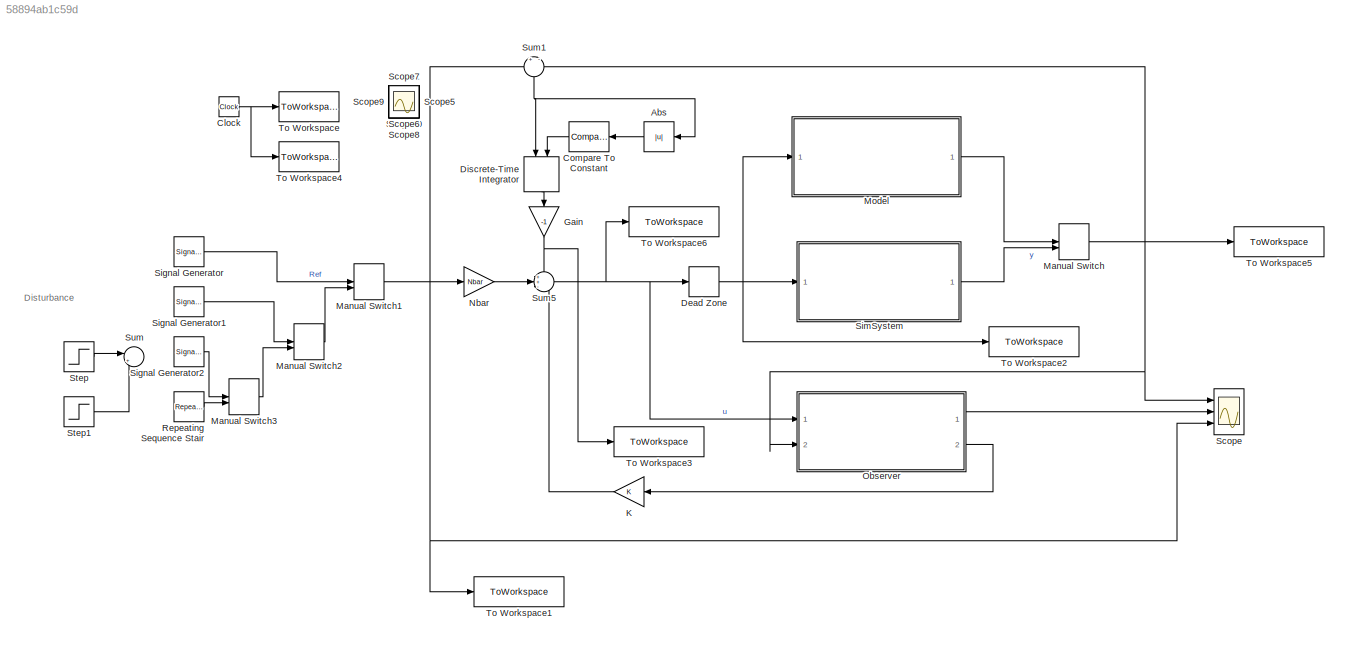
MODEL slx_58894ab1c59d
KIND model
CONFIG AbsTol = auto
CONFIG EnableMultiTasking = on
CONFIG FixedStep = auto
CONFIG MaxStep = auto
CONFIG MinStep = auto
CONFIG RelTol = 1e-6
CONFIG SampleTimeConstraint = Unconstrained
CONFIG Solver = ode45
CONFIG SolverName = ode45
CONFIG StartTime = 0.0
CONFIG StopTime = 500
BLOCK [Abs] Abs
  SaturateOnIntegerOverflow = off
BLOCK [Clock] Clock
BLOCK [Reference] Compare To Constant  REF=simulink/Logic and Bit
Operations/Compare
To Constant
  Ports = [1, 1]
  SourceBlock = simulink/Logic and Bit\nOperations/Compare\nTo Constant
  SourceProductBaseCode = SL
  SourceProductName = Simulink
  SourceType = Compare To Constant
BLOCK [DeadZone] Dead Zone
  LowerValue = -0.1
  UpperValue = 0.1
BLOCK [DiscreteIntegrator] Discrete-Time Integrator
  ExternalReset = sampled level
  ICPrevOutput = DiscIntNeverNeededParam
  ICPrevScaledInput = DiscIntNeverNeededParam
  InitialConditionSetting = Auto
  Ports = [2, 1]
  SampleTime = -1
  gainval = 20e-3
BLOCK [Gain] Gain
  Gain = -1
  OutDataTypeStr = Inherit: Inherit via internal rule
  ParamDataTypeStr = Inherit: Inherit via internal rule
  SaturateOnIntegerOverflow = off
BLOCK [Gain] K
  Gain = K
  Multiplication = Matrix(K*u)
  OutDataTypeStr = Inherit: Inherit via internal rule
  ParamDataTypeStr = Inherit: Inherit via internal rule
  SaturateOnIntegerOverflow = off
BLOCK [ManualSwitch] Manual Switch
  CurrentSetting = 0
BLOCK [ManualSwitch] Manual Switch1
BLOCK [ManualSwitch] Manual Switch2
BLOCK [ManualSwitch] Manual Switch3
  CurrentSetting = 0
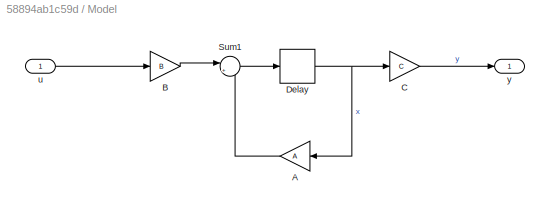
BLOCK [SubSystem] Model
  Ports = [1, 1]
  RequestExecContextInheritance = off
BLOCK [Gain] Model/A 
  Gain = A
  Multiplication = Matrix(K*u)
  OutDataTypeStr = Inherit: Inherit via internal rule
  ParamDataTypeStr = Inherit: Inherit via internal rule
  SaturateOnIntegerOverflow = off
BLOCK [Gain] Model/B
  Gain = B
  Multiplication = Matrix(K*u)
  OutDataTypeStr = Inherit: Inherit via internal rule
  ParamDataTypeStr = Inherit: Inherit via internal rule
  SaturateOnIntegerOverflow = off
BLOCK [Gain] Model/C
  Gain = C
  Multiplication = Matrix(K*u)
  OutDataTypeStr = Inherit: Inherit via internal rule
  ParamDataTypeStr = Inherit: Inherit via internal rule
  SaturateOnIntegerOverflow = off
BLOCK [Delay] Model/Delay
  DelayLength = 1
  InitialCondition = 0
  InputPortMap = u0
  Ports = [1, 1]
  SampleTime = Ts
BLOCK [Sum] Model/Sum1
  IconShape = round
  InputSameDT = off
  Inputs = |++
  OutDataTypeStr = Inherit: Inherit via internal rule
  Ports = [2, 1]
  SaturateOnIntegerOverflow = off
BLOCK [Inport] Model/u
  IconDisplay = Port number
BLOCK [Outport] Model/y
  IconDisplay = Port number
  VectorParamsAs1DForOutWhenUnconnected = on
BLOCK [Gain] Nbar
  Gain = Nbar
  OutDataTypeStr = Inherit: Inherit via internal rule
  ParamDataTypeStr = Inherit: Inherit via internal rule
  SaturateOnIntegerOverflow = off
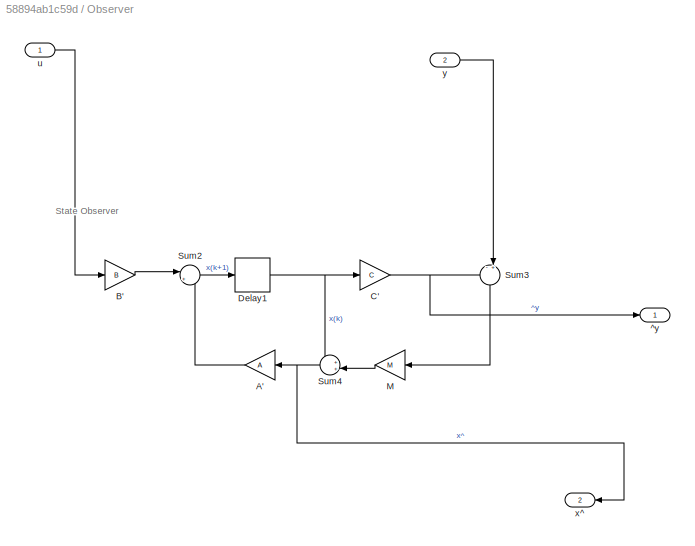
BLOCK [SubSystem] Observer
  Description = Observer
  Ports = [2, 2]
  RequestExecContextInheritance = off
  Tag = Observer
BLOCK [Gain] Observer/A'
  Gain = A
  Multiplication = Matrix(K*u)
  OutDataTypeStr = Inherit: Inherit via internal rule
  ParamDataTypeStr = Inherit: Inherit via internal rule
  SaturateOnIntegerOverflow = off
BLOCK [Gain] Observer/B'
  Gain = B
  Multiplication = Matrix(K*u)
  OutDataTypeStr = Inherit: Inherit via internal rule
  ParamDataTypeStr = Inherit: Inherit via internal rule
  SaturateOnIntegerOverflow = off
BLOCK [Gain] Observer/C'
  Gain = C
  Multiplication = Matrix(K*u)
  OutDataTypeStr = Inherit: Inherit via internal rule
  ParamDataTypeStr = Inherit: Inherit via internal rule
  SaturateOnIntegerOverflow = off
BLOCK [Delay] Observer/Delay1
  DelayLength = 1
  InitialCondition = 0
  InputPortMap = u0
  Ports = [1, 1]
  SampleTime = Ts
BLOCK [Gain] Observer/M
  Gain = M
  Multiplication = Matrix(K*u)
  OutDataTypeStr = Inherit: Inherit via internal rule
  ParamDataTypeStr = Inherit: Inherit via internal rule
  SaturateOnIntegerOverflow = off
BLOCK [Sum] Observer/Sum2
  IconShape = round
  InputSameDT = off
  Inputs = |++
  OutDataTypeStr = Inherit: Inherit via internal rule
  Ports = [2, 1]
  SaturateOnIntegerOverflow = off
BLOCK [Sum] Observer/Sum3
  IconShape = round
  InputSameDT = off
  Inputs = -+|
  OutDataTypeStr = Inherit: Inherit via internal rule
  Ports = [2, 1]
  SaturateOnIntegerOverflow = off
BLOCK [Sum] Observer/Sum4
  IconShape = round
  InputSameDT = off
  Inputs = ++|
  OutDataTypeStr = Inherit: Inherit via internal rule
  Ports = [2, 1]
  SaturateOnIntegerOverflow = off
BLOCK [Outport] Observer/^y
  IconDisplay = Port number
  VectorParamsAs1DForOutWhenUnconnected = on
BLOCK [Inport] Observer/u
  IconDisplay = Port number
BLOCK [Outport] Observer/x^
  IconDisplay = Port number
  Port = 2
  VectorParamsAs1DForOutWhenUnconnected = on
BLOCK [Inport] Observer/y
  IconDisplay = Port number
  Port = 2
BLOCK [Reference] Repeating Sequence Stair  REF=simulink/Sources/Repeating
Sequence
Stair
  Ports = [0, 1]
  SourceBlock = simulink/Sources/Repeating\nSequence\nStair
  SourceProductBaseCode = SL
  SourceProductName = Simulink
  SourceType = Repeating Sequence Stair
BLOCK [Scope] Scope
  Floating = off
  NumInputPorts = 3
  Ports = [3]
  ScopeSpecificationString = Simulink.scopes.TimeScopeBlockCfg('CurrentConfiguration', extmgr.ConfigurationSet(extmgr.Configuration('Core','General UI',true),extmgr.Configuration('Core','Source UI',true),extmgr.Configuration('Sources','WiredSimulink',true,'DataLoggingVariableName','ScopeData1'),extmgr.Configuration('Visuals','Time Domain',true,'SerializedDisplays',{struct('MinYLimReal','-5.18069','MaxYLimReal','5.18012','YLab...<+1596ch>
BLOCK [Scope] Scope10
  Floating = off
  IOType = viewer
  NumInputPorts = 1
  Ports = []
  ScopeSpecificationString = Simulink.scopes.TimeScopeBlockCfg('CurrentConfiguration', extmgr.ConfigurationSet(extmgr.Configuration('Core','General UI',true),extmgr.Configuration('Core','Source UI',true),extmgr.Configuration('Sources','WiredSimulink',true,'DataLoggingVariableName','ScopeData1'),extmgr.Configuration('Visuals','Time Domain',true,'SerializedDisplays',{struct('MinYLimReal','-1.33008','MaxYLimReal','0.24','YLabelR...<+1418ch>
BLOCK [Scope] Scope2
  Floating = off
  IOType = viewer
  NumInputPorts = 1
  Ports = []
  ScopeSpecificationString = Simulink.scopes.TimeScopeBlockCfg('CurrentConfiguration', extmgr.ConfigurationSet(extmgr.Configuration('Core','General UI',true),extmgr.Configuration('Core','Source UI',true),extmgr.Configuration('Sources','WiredSimulink',true,'DataLoggingVariableName','ScopeData1'),extmgr.Configuration('Visuals','Time Domain',true,'SerializedDisplays',{struct('MinYLimReal','-0.05739','MaxYLimReal','0.03985','YLab...<+1461ch>
BLOCK [Scope] Scope3
  Floating = off
  IOType = viewer
  NumInputPorts = 1
  Ports = []
  ScopeSpecificationString = Simulink.scopes.TimeScopeBlockCfg('CurrentConfiguration', extmgr.ConfigurationSet(extmgr.Configuration('Core','General UI',true),extmgr.Configuration('Core','Source UI',true),extmgr.Configuration('Sources','WiredSimulink',true,'DataLoggingVariableName','ScopeData2'),extmgr.Configuration('Visuals','Time Domain',true,'SerializedDisplays',{struct('MinYLimReal','-0.125','MaxYLimReal','1.125','YLabelRe...<+1347ch>
BLOCK [Scope] Scope4
  Floating = off
  IOType = viewer
  NumInputPorts = 1
  Ports = []
  ScopeSpecificationString = Simulink.scopes.TimeScopeBlockCfg('CurrentConfiguration', extmgr.ConfigurationSet(extmgr.Configuration('Core','General UI',true),extmgr.Configuration('Core','Source UI',true),extmgr.Configuration('Sources','WiredSimulink',true,'DataLoggingVariableName','ScopeData3'),extmgr.Configuration('Visuals','Time Domain',true,'SerializedDisplays',{struct('MinYLimReal','-5.49292','MaxYLimReal','5.49377','YLab...<+1436ch>
BLOCK [Scope] Scope5
  Floating = off
  IOType = viewer
  NumInputPorts = 1
  Ports = []
  ScopeSpecificationString = Simulink.scopes.TimeScopeBlockCfg('CurrentConfiguration', extmgr.ConfigurationSet(extmgr.Configuration('Core','General UI',true),extmgr.Configuration('Core','Source UI',true),extmgr.Configuration('Sources','WiredSimulink',true,'DataLoggingVariableName','ScopeData4'),extmgr.Configuration('Visuals','Time Domain',true,'SerializedDisplays',{struct('MinYLimReal','-0.125','MaxYLimReal','1.125','YLabelRe...<+1422ch>
BLOCK [Scope] Scope6
  Floating = off
  IOType = viewer
  NumInputPorts = 1
  Ports = []
  ScopeSpecificationString = Simulink.scopes.TimeScopeBlockCfg('CurrentConfiguration', extmgr.ConfigurationSet(extmgr.Configuration('Core','General UI',true),extmgr.Configuration('Core','Source UI',true),extmgr.Configuration('Sources','WiredSimulink',true,'DataLoggingVariableName','ScopeData1'),extmgr.Configuration('Visuals','Time Domain',true,'SerializedDisplays',{struct('MinYLimReal','-8.89372','MaxYLimReal','8.89442','YLab...<+1440ch>
BLOCK [Scope] Scope7
  Floating = off
  IOType = viewer
  NumInputPorts = 1
  Ports = []
  ScopeSpecificationString = Simulink.scopes.TimeScopeBlockCfg('CurrentConfiguration', extmgr.ConfigurationSet(extmgr.Configuration('Core','General UI',true),extmgr.Configuration('Core','Source UI',true),extmgr.Configuration('Sources','WiredSimulink',true,'DataLoggingVariableName','ScopeData2'),extmgr.Configuration('Visuals','Time Domain',true,'SerializedDisplays',{struct('MinYLimReal','-5.00000','MaxYLimReal','5.00000','YLab...<+1359ch>
BLOCK [Scope] Scope8
  Floating = off
  IOType = viewer
  NumInputPorts = 1
  Ports = []
  ScopeSpecificationString = Simulink.scopes.TimeScopeBlockCfg('CurrentConfiguration', extmgr.ConfigurationSet(extmgr.Configuration('Core','General UI',true),extmgr.Configuration('Core','Source UI',true),extmgr.Configuration('Sources','WiredSimulink',true,'DataLoggingVariableName','ScopeData1'),extmgr.Configuration('Visuals','Time Domain',true,'SerializedDisplays',{struct('MinYLimReal','-0.07581','MaxYLimReal','0.19722','YLab...<+1418ch>
BLOCK [Scope] Scope9
  Floating = off
  IOType = viewer
  NumInputPorts = 1
  Ports = []
  ScopeSpecificationString = Simulink.scopes.TimeScopeBlockCfg('CurrentConfiguration', extmgr.ConfigurationSet(extmgr.Configuration('Core','General UI',true),extmgr.Configuration('Core','Source UI',true),extmgr.Configuration('Sources','WiredSimulink',true,'DataLoggingVariableName','ScopeData2'),extmgr.Configuration('Visuals','Time Domain',true,'SerializedDisplays',{struct('MinYLimReal','0.625','MaxYLimReal','4.375','YLabelRea...<+1355ch>
BLOCK [SignalGenerator] Signal Generator
  Amplitude = 4
  Frequency = 1/50
  Ports = [0, 1]
  WaveForm = square
BLOCK [SignalGenerator] Signal Generator1
  Amplitude = 4
  Frequency = 1/50
  Ports = [0, 1]
  WaveForm = sawtooth
BLOCK [SignalGenerator] Signal Generator2
  Amplitude = 4
  Frequency = 1/50
  Ports = [0, 1]
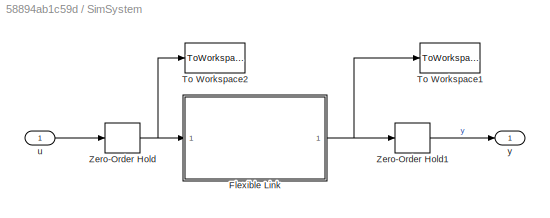
BLOCK [SubSystem] SimSystem
  Ports = [1, 1]
  RequestExecContextInheritance = off
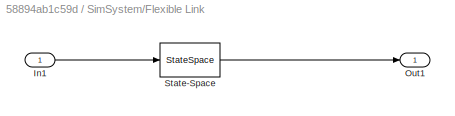
BLOCK [SubSystem] SimSystem/Flexible Link
  Ports = [1, 1]
  RequestExecContextInheritance = off
BLOCK [Inport] SimSystem/Flexible Link/In1
  IconDisplay = Port number
BLOCK [Outport] SimSystem/Flexible Link/Out1
  IconDisplay = Port number
  VectorParamsAs1DForOutWhenUnconnected = on
BLOCK [StateSpace] SimSystem/Flexible Link/State-Space
  A = Atrue
  B = Btrue
  C = Ctrue
  D = Dtrue
  InitialCondition = 0
  Ports = [1, 1]
BLOCK [ToWorkspace] SimSystem/To Workspace1
  FixptAsFi = on
  MaxDataPoints = inf
  Ports = [1]
  SampleTime = -1
  Save2DSignal = 3-D array (concatenate along third dimension)
  VariableName = y
BLOCK [ToWorkspace] SimSystem/To Workspace2
  FixptAsFi = on
  MaxDataPoints = inf
  Ports = [1]
  SampleTime = Ts
  Save2DSignal = 3-D array (concatenate along third dimension)
  VariableName = us
BLOCK [ZeroOrderHold] SimSystem/Zero-Order Hold
  SampleTime = Ts
BLOCK [ZeroOrderHold] SimSystem/Zero-Order Hold1
  SampleTime = Ts
BLOCK [Inport] SimSystem/u
  IconDisplay = Port number
BLOCK [Outport] SimSystem/y
  IconDisplay = Port number
  VectorParamsAs1DForOutWhenUnconnected = on
BLOCK [Step] Step
  Before = -1
  SampleTime = 0.1
  Time = 2
BLOCK [Step] Step1
  After = -1
  Before = 1
  SampleTime = 0.1
  Time = 4
BLOCK [Sum] Sum
  IconShape = round
  InputSameDT = off
  Inputs = |++
  OutDataTypeStr = Inherit: Inherit via internal rule
  Ports = [2, 1]
  SaturateOnIntegerOverflow = off
BLOCK [Sum] Sum1
  IconShape = round
  InputSameDT = off
  Inputs = +|-
  OutDataTypeStr = Inherit: Inherit via internal rule
  Ports = [2, 1]
  SaturateOnIntegerOverflow = off
BLOCK [Sum] Sum5
  IconShape = round
  InputSameDT = off
  Inputs = ++-
  OutDataTypeStr = Inherit: Inherit via internal rule
  Ports = [3, 1]
  SaturateOnIntegerOverflow = off
BLOCK [ToWorkspace] To Workspace
  FixptAsFi = on
  MaxDataPoints = inf
  Ports = [1]
  SampleTime = -1
  Save2DSignal = 3-D array (concatenate along third dimension)
  VariableName = t
BLOCK [ToWorkspace] To Workspace1
  FixptAsFi = on
  MaxDataPoints = inf
  Ports = [1]
  SampleTime = Ts
  Save2DSignal = 3-D array (concatenate along third dimension)
  SaveFormat = Structure With Time
  VariableName = yin
BLOCK [ToWorkspace] To Workspace2
  FixptAsFi = on
  MaxDataPoints = inf
  Ports = [1]
  SampleTime = Ts
  Save2DSignal = 3-D array (concatenate along third dimension)
  SaveFormat = Structure With Time
  VariableName = u2
BLOCK [ToWorkspace] To Workspace3
  FixptAsFi = on
  MaxDataPoints = inf
  Ports = [1]
  SampleTime = Ts
  Save2DSignal = 3-D array (concatenate along third dimension)
  SaveFormat = Structure With Time
  VariableName = gain
BLOCK [ToWorkspace] To Workspace4
  FixptAsFi = on
  MaxDataPoints = inf
  Ports = [1]
  SampleTime = Ts
  Save2DSignal = 3-D array (concatenate along third dimension)
  VariableName = ts
BLOCK [ToWorkspace] To Workspace5
  FixptAsFi = on
  MaxDataPoints = inf
  Ports = [1]
  SampleTime = Ts
  Save2DSignal = 3-D array (concatenate along third dimension)
  SaveFormat = Structure With Time
  VariableName = yout
BLOCK [ToWorkspace] To Workspace6
  FixptAsFi = on
  MaxDataPoints = inf
  Ports = [1]
  SampleTime = Ts
  Save2DSignal = 3-D array (concatenate along third dimension)
  SaveFormat = Structure With Time
  VariableName = u1
ANNOTATION (root): Disturbance
ANNOTATION Observer: State Observer
LINE Abs:1 -> Compare To Constant:1
NET Clock:1 -> To Workspace4:1, To Workspace:1
LINE Compare To Constant:1 -> Discrete-Time Integrator:2
NET Dead Zone:1 -> Model:1, SimSystem:1, To Workspace2:1
LINE Discrete-Time Integrator:1 -> Gain:1
NET Gain:1 -> Sum5:1, To Workspace3:1
LINE K:1 -> Sum5:3
NET Manual Switch1:1 -> Nbar:1, Scope:3, Sum1:1, To Workspace1:1
LINE Manual Switch2:1 -> Manual Switch1:2
LINE Manual Switch3:1 -> Manual Switch2:2
NET Manual Switch:1 -> Observer:2, Scope:1, Sum1:2, To Workspace5:1
LINE Model/A :1 -> Model/Sum1:2
LINE Model/B:1 -> Model/Sum1:1
LINE Model/C:1 -> Model/y:1
NET Model/Delay:1 -> Model/A :1, Model/C:1
LINE Model/Sum1:1 -> Model/Delay:1
LINE Model/u:1 -> Model/B:1
LINE Model:1 -> Manual Switch:1
LINE Nbar:1 -> Sum5:2
LINE Observer/A':1 -> Observer/Sum2:2
LINE Observer/B':1 -> Observer/Sum2:1
NET Observer/C':1 -> Observer/Sum3:1, Observer/^y:1
NET Observer/Delay1:1 -> Observer/C':1, Observer/Sum4:1
LINE Observer/M:1 -> Observer/Sum4:2
LINE Observer/Sum2:1 -> Observer/Delay1:1
LINE Observer/Sum3:1 -> Observer/M:1
NET Observer/Sum4:1 -> Observer/A':1, Observer/x^:1
LINE Observer/u:1 -> Observer/B':1
LINE Observer/y:1 -> Observer/Sum3:2
LINE Observer:1 -> Scope:2
LINE Observer:2 -> K:1
LINE Repeating Sequence Stair:1 -> Manual Switch3:2
LINE Signal Generator1:1 -> Manual Switch2:1
LINE Signal Generator2:1 -> Manual Switch3:1
LINE Signal Generator:1 -> Manual Switch1:1
LINE SimSystem/Flexible Link/In1:1 -> SimSystem/Flexible Link/State-Space:1
LINE SimSystem/Flexible Link/State-Space:1 -> SimSystem/Flexible Link/Out1:1
NET SimSystem/Flexible Link:1 -> SimSystem/To Workspace1:1, SimSystem/Zero-Order Hold1:1
LINE SimSystem/Zero-Order Hold1:1 -> SimSystem/y:1
NET SimSystem/Zero-Order Hold:1 -> SimSystem/Flexible Link:1, SimSystem/To Workspace2:1
LINE SimSystem/u:1 -> SimSystem/Zero-Order Hold:1
LINE SimSystem:1 -> Manual Switch:2
LINE Step1:1 -> Sum:2
LINE Step:1 -> Sum:1
NET Sum1:1 -> Abs:1, Discrete-Time Integrator:1
NET Sum5:1 -> Dead Zone:1, Observer:1, To Workspace6:1
note: NET lines group one-source signal fan-out (src -> all destinations, sorted); 1:1 wires keep LINE
